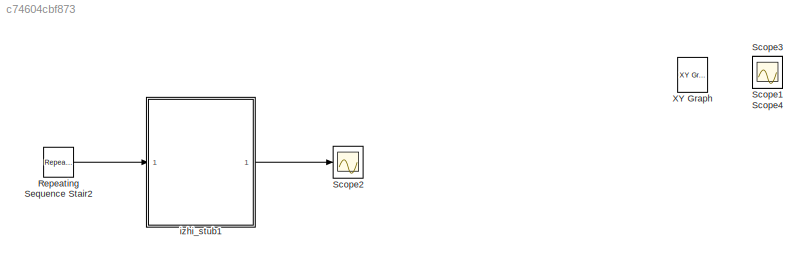
MODEL slx_c74604cbf873
KIND model
CONFIG AbsTol = auto
CONFIG EnableMultiTasking = off
CONFIG FixedStep = 0.001
CONFIG MaxStep = auto
CONFIG MinStep = auto
CONFIG RelTol = 1e-3
CONFIG SampleTimeConstraint = Unconstrained
CONFIG Solver = FixedStepAuto
CONFIG SolverName = FixedStepAuto
CONFIG StartTime = 0.0
CONFIG StopTime = 1
BLOCK [Reference] Repeating Sequence Stair2  REF=simulink/Sources/Repeating
Sequence
Stair
  Ports = [0, 1]
  SourceBlock = simulink/Sources/Repeating\nSequence\nStair
  SourceProductBaseCode = SL
  SourceType = Repeating Sequence Stair
BLOCK [Scope] Scope1
  Floating = off
  IOType = viewer
  NumInputPorts = 1
  Ports = []
  ScopeSpecificationString = Simulink.scopes.TimeScopeBlockCfg('CurrentConfiguration', extmgr.ConfigurationSet(extmgr.Configuration('Core','General UI',true),extmgr.Configuration('Core','Source UI',true),extmgr.Configuration('Sources','WiredSimulink',true,'DataLoggingVariableName','ScopeData1'),extmgr.Configuration('Visuals','Time Domain',true,'SerializedDisplays',{struct('MinYLimReal','-0.24987','MaxYLimReal','2.24887','YLab...<+1436ch>
BLOCK [Scope] Scope2
  Floating = off
  NumInputPorts = 1
  Ports = [1]
  ScopeSpecificationString = Simulink.scopes.TimeScopeBlockCfg('CurrentConfiguration', extmgr.ConfigurationSet(extmgr.Configuration('Core','General UI',true),extmgr.Configuration('Core','Source UI',true),extmgr.Configuration('Sources','WiredSimulink',true,'DataLoggingVariableName','ScopeData1'),extmgr.Configuration('Visuals','Time Domain',true,'SerializedDisplays',{struct('MinYLimReal','-91.15138','MaxYLimReal','42.5186','YLa...<+1532ch>
BLOCK [Scope] Scope3
  Floating = off
  IOType = viewer
  NumInputPorts = 1
  Ports = []
  ScopeSpecificationString = Simulink.scopes.TimeScopeBlockCfg('CurrentConfiguration', extmgr.ConfigurationSet(extmgr.Configuration('Core','General UI',true),extmgr.Configuration('Core','Source UI',true),extmgr.Configuration('Sources','WiredSimulink',true,'DataLoggingVariableName','ScopeData3'),extmgr.Configuration('Visuals','Time Domain',true,'SerializedDisplays',{struct('MinYLimReal','-103.72127','MaxYLimReal','38.33358','Y...<+1371ch>
BLOCK [Scope] Scope4
  Floating = off
  IOType = viewer
  NumInputPorts = 1
  Ports = []
  ScopeSpecificationString = Simulink.scopes.TimeScopeBlockCfg('CurrentConfiguration', extmgr.ConfigurationSet(extmgr.Configuration('Core','General UI',true),extmgr.Configuration('Core','Source UI',true),extmgr.Configuration('Sources','WiredSimulink',true,'DataLoggingVariableName','ScopeData4'),extmgr.Configuration('Visuals','Time Domain',true,'SerializedDisplays',{struct('MinYLimReal','-20.75486','MaxYLimReal','56.79378','YL...<+1365ch>
BLOCK [Reference] XY Graph  REF=simulink/Sinks/XY Graph
  IOType = viewer
  Ports = [2]
  SourceBlock = simulink/Sinks/XY Graph
  SourceProductBaseCode = SL
  SourceType = XY scope.
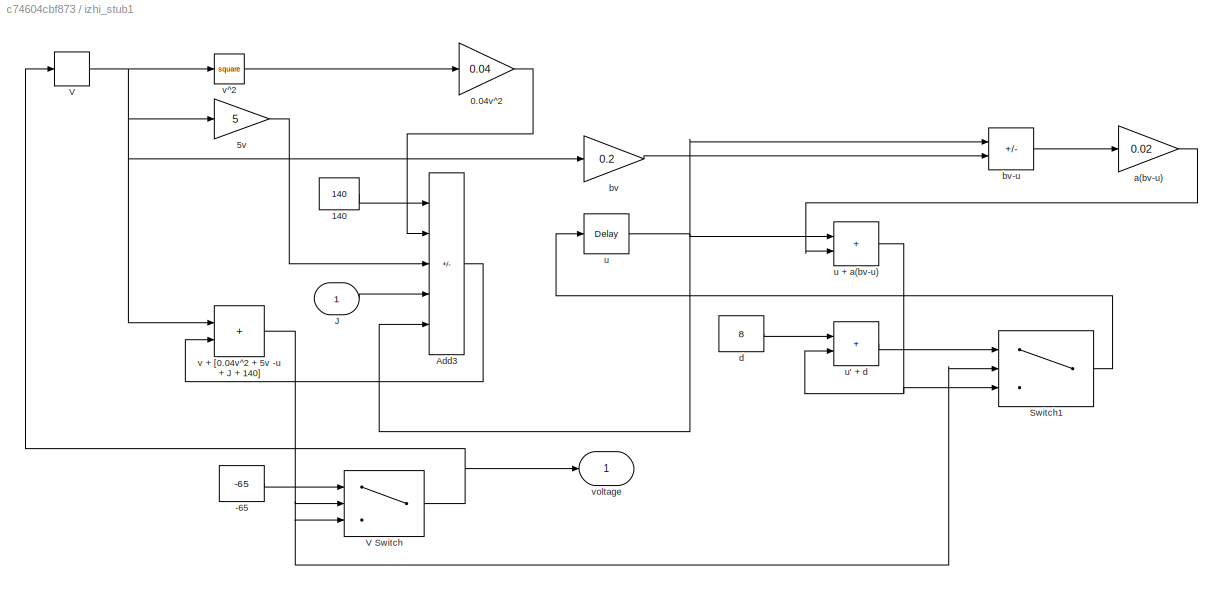
BLOCK [SubSystem] izhi_stub1
  Ports = [1, 1]
  RequestExecContextInheritance = off
BLOCK [Constant] izhi_stub1/-65
  Value = -65
BLOCK [Gain] izhi_stub1/0.04v^2
  Gain = 0.04
BLOCK [Constant] izhi_stub1/140
  Value = 140
BLOCK [Gain] izhi_stub1/5v
  Gain = 5
BLOCK [Sum] izhi_stub1/Add3
  IconShape = rectangular
  Inputs = ++++-
  Ports = [5, 1]
BLOCK [Inport] izhi_stub1/J
BLOCK [Switch] izhi_stub1/Switch1
  Criteria = u2 > Threshold
  InputSameDT = off
  NameLocation = left
  SaturateOnIntegerOverflow = off
  Threshold = 30
BLOCK [Delay] izhi_stub1/V
  DelayLength = 1
  InitialCondition = -65
  InputPortMap = u0
  Ports = [1, 1]
BLOCK [Switch] izhi_stub1/V Switch
  Criteria = u2 > Threshold
  InputSameDT = off
  SaturateOnIntegerOverflow = off
  Threshold = 30
BLOCK [Gain] izhi_stub1/a(bv-u)
  Gain = 0.02
BLOCK [Gain] izhi_stub1/bv
  Gain = 0.2
BLOCK [Sum] izhi_stub1/bv-u
  IconShape = rectangular
  Inputs = -+
  Ports = [2, 1]
BLOCK [Constant] izhi_stub1/d
  Value = 8
BLOCK [Delay] izhi_stub1/u
  DelayLength = 1
  InitialCondition = 0
  InputPortMap = u0
  Ports = [1, 1]
BLOCK [Sum] izhi_stub1/u + a(bv-u)
  IconShape = rectangular
  Ports = [2, 1]
BLOCK [Sum] izhi_stub1/u' + d
  IconShape = rectangular
  Ports = [2, 1]
BLOCK [Sum] izhi_stub1/v + [0.04v^2 + 5v -u + J + 140]
  IconShape = rectangular
  Ports = [2, 1]
BLOCK [Math] izhi_stub1/v^2
  Operator = square
  Ports = [1, 1]
BLOCK [Outport] izhi_stub1/voltage
  VectorParamsAs1DForOutWhenUnconnected = off
LINE Repeating Sequence Stair2:1 -> izhi_stub1:1
LINE izhi_stub1/-65:1 -> izhi_stub1/V Switch:1
LINE izhi_stub1/0.04v^2:1 -> izhi_stub1/Add3:2
LINE izhi_stub1/140:1 -> izhi_stub1/Add3:1
LINE izhi_stub1/5v:1 -> izhi_stub1/Add3:3
LINE izhi_stub1/Add3:1 -> izhi_stub1/v + [0.04v^2 + 5v -u + J + 140]:2
LINE izhi_stub1/J:1 -> izhi_stub1/Add3:4
LINE izhi_stub1/Switch1:1 -> izhi_stub1/u:1
NET izhi_stub1/V Switch:1 -> izhi_stub1/V:1, izhi_stub1/voltage:1
NET izhi_stub1/V:1 -> izhi_stub1/5v:1, izhi_stub1/bv:1, izhi_stub1/v + [0.04v^2 + 5v -u + J + 140]:1, izhi_stub1/v^2:1
LINE izhi_stub1/a(bv-u):1 -> izhi_stub1/u + a(bv-u):2
LINE izhi_stub1/bv-u:1 -> izhi_stub1/a(bv-u):1
LINE izhi_stub1/bv:1 -> izhi_stub1/bv-u:2
LINE izhi_stub1/d:1 -> izhi_stub1/u' + d:1
NET izhi_stub1/u + a(bv-u):1 -> izhi_stub1/Switch1:3, izhi_stub1/u' + d:2
LINE izhi_stub1/u' + d:1 -> izhi_stub1/Switch1:1
NET izhi_stub1/u:1 -> izhi_stub1/Add3:5, izhi_stub1/bv-u:1, izhi_stub1/u + a(bv-u):1
NET izhi_stub1/v + [0.04v^2 + 5v -u + J + 140]:1 -> izhi_stub1/Switch1:2, izhi_stub1/V Switch:2, izhi_stub1/V Switch:3
LINE izhi_stub1/v^2:1 -> izhi_stub1/0.04v^2:1
LINE izhi_stub1:1 -> Scope2:1
note: NET lines group one-source signal fan-out (src -> all destinations, sorted); 1:1 wires keep LINE
